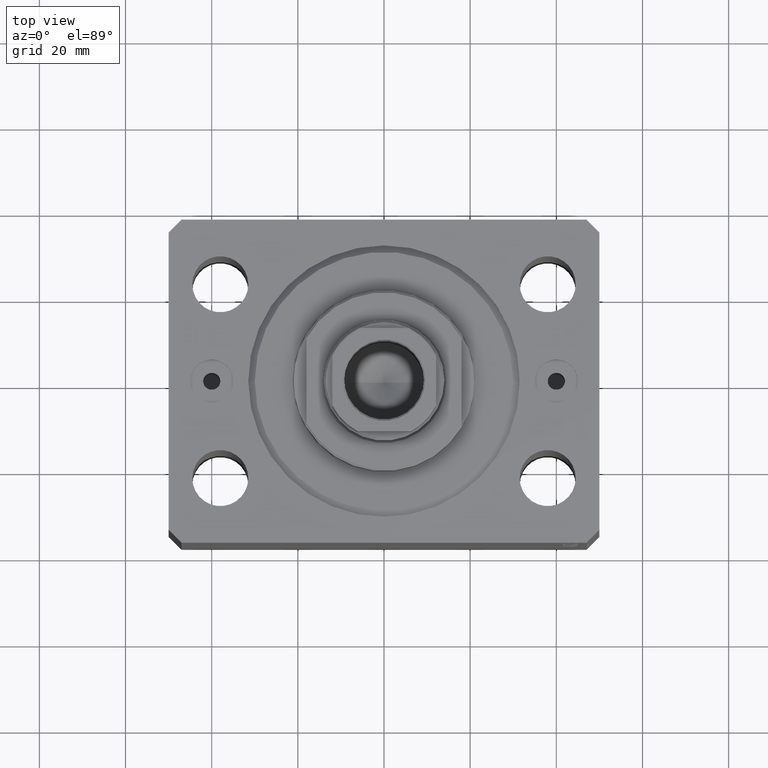
[diagram: clean part render]
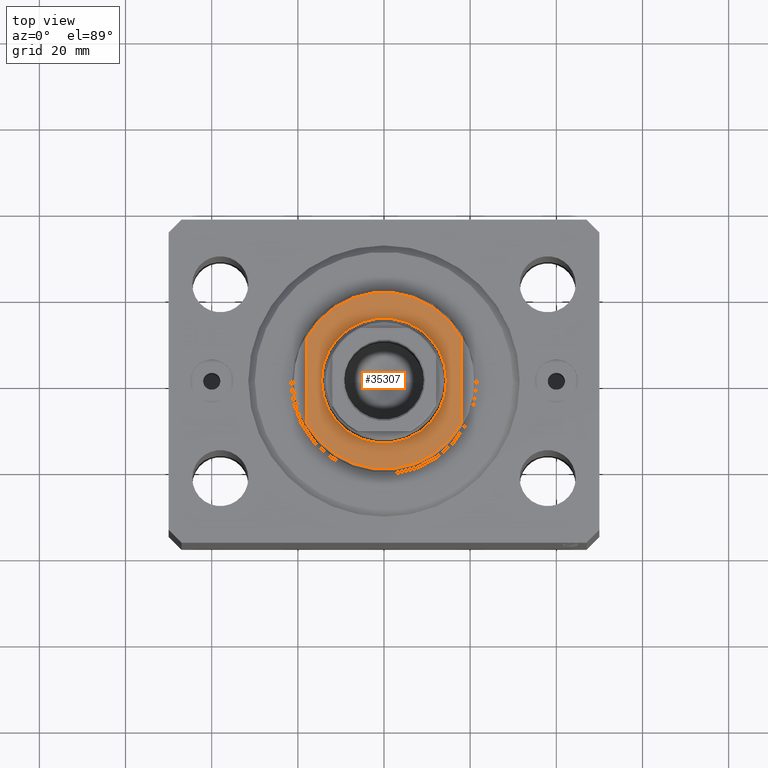
[diagram: same view with one face highlighted and labeled with its STEP entity id]
A machine part, top view. The second image highlights one B-rep face of the part: STEP entity #35307.
In plain terms, the highlighted planar face has unit normal (0, 0, 1).
Its self-contained STEP definition (entity closure, byte-faithful):
#920 = ORIENTED_EDGE ( 'NONE', *, *, #11666, .T. ) ;
#953 = PLANE ( 'NONE',  #25593 ) ;
#1406 = ORIENTED_EDGE ( 'NONE', *, *, #21518, .T. ) ;
#3175 = ORIENTED_EDGE ( 'NONE', *, *, #25645, .F. ) ;
#4287 = DIRECTION ( 'NONE',  ( -0.000000000000000000, -0.000000000000000000, 1.000000000000000000 ) ) ;
#4540 = DIRECTION ( 'NONE',  ( 0.000000000000000000, 0.000000000000000000, -1.000000000000000000 ) ) ;
#4685 = CARTESIAN_POINT ( 'NONE',  ( -14.49999999999998579, 0.000000000000000000, -8.000000000000000000 ) ) ;
#4712 = DIRECTION ( 'NONE',  ( -0.000000000000000000, -0.000000000000000000, 1.000000000000000000 ) ) ;
#6526 = DIRECTION ( 'NONE',  ( 0.000000000000000000, 0.000000000000000000, -1.000000000000000000 ) ) ;
#6528 = ORIENTED_EDGE ( 'NONE', *, *, #9271, .T. ) ;
#6677 = CARTESIAN_POINT ( 'NONE',  ( 0.000000000000000000, 0.000000000000000000, -8.000000000000000000 ) ) ;
#7232 = VECTOR ( 'NONE', #36169, 1000.000000000000000 ) ;
#9271 = EDGE_CURVE ( 'NONE', #16949, #33197, #36375, .T. ) ;
#10547 = AXIS2_PLACEMENT_3D ( 'NONE', #33731, #6526, #13045 ) ;
#11440 = AXIS2_PLACEMENT_3D ( 'NONE', #31941, #4287, #21158 ) ;
#11666 = EDGE_CURVE ( 'NONE', #38835, #16885, #30711, .T. ) ;
#13017 = LINE ( 'NONE', #36628, #7232 ) ;
#13045 = DIRECTION ( 'NONE',  ( -1.000000000000000000, 0.000000000000000000, 0.000000000000000000 ) ) ;
#13627 = VECTOR ( 'NONE', #41358, 1000.000000000000000 ) ;
#13984 = EDGE_LOOP ( 'NONE', ( #6528, #24529, #23374, #3175 ) ) ;
#16362 = AXIS2_PLACEMENT_3D ( 'NONE', #19091, #4712, #18645 ) ;
#16885 = VERTEX_POINT ( 'NONE', #37860 ) ;
#16949 = VERTEX_POINT ( 'NONE', #28178 ) ;
#17591 = CARTESIAN_POINT ( 'NONE',  ( 0.000000000000000000, 0.000000000000000000, -8.000000000000000000 ) ) ;
#17626 = CARTESIAN_POINT ( 'NONE',  ( 18.00000000000000000, 9.810708435174301911, -8.000000000000000000 ) ) ;
#17798 = EDGE_LOOP ( 'NONE', ( #920, #1406 ) ) ;
#17949 = CARTESIAN_POINT ( 'NONE',  ( -18.00000000000000000, -9.810708435174301911, -8.000000000000000000 ) ) ;
#18645 = DIRECTION ( 'NONE',  ( -1.000000000000000000, 0.000000000000000000, 0.000000000000000000 ) ) ;
#18899 = EDGE_CURVE ( 'NONE', #33197, #32664, #23614, .T. ) ;
#19091 = CARTESIAN_POINT ( 'NONE',  ( 0.000000000000000000, 0.000000000000000000, -8.000000000000000000 ) ) ;
#20690 = CARTESIAN_POINT ( 'NONE',  ( 18.00000000000000000, -41.24318125460256113, -8.000000000000000000 ) ) ;
#21158 = DIRECTION ( 'NONE',  ( -1.000000000000000000, 0.000000000000000000, 0.000000000000000000 ) ) ;
#21518 = EDGE_CURVE ( 'NONE', #16885, #38835, #44482, .T. ) ;
#22726 = EDGE_CURVE ( 'NONE', #32664, #42922, #26565, .T. ) ;
#23374 = ORIENTED_EDGE ( 'NONE', *, *, #22726, .T. ) ;
#23614 = LINE ( 'NONE', #20690, #13627 ) ;
#24529 = ORIENTED_EDGE ( 'NONE', *, *, #18899, .T. ) ;
#25235 = FACE_BOUND ( 'NONE', #17798, .T. ) ;
#25593 = AXIS2_PLACEMENT_3D ( 'NONE', #17591, #4540, #27944 ) ;
#25645 = EDGE_CURVE ( 'NONE', #16949, #42922, #13017, .T. ) ;
#25814 = AXIS2_PLACEMENT_3D ( 'NONE', #6677, #41289, #33449 ) ;
#26565 = CIRCLE ( 'NONE', #25814, 20.50000000000000355 ) ;
#27699 = CARTESIAN_POINT ( 'NONE',  ( 18.00000000000000000, -9.810708435174301911, -8.000000000000000000 ) ) ;
#27944 = DIRECTION ( 'NONE',  ( -1.000000000000000000, 0.000000000000000000, -0.000000000000000000 ) ) ;
#28178 = CARTESIAN_POINT ( 'NONE',  ( -18.00000000000000000, 9.810708435174301911, -8.000000000000000000 ) ) ;
#30711 = CIRCLE ( 'NONE', #16362, 14.49999999999998579 ) ;
#31941 = CARTESIAN_POINT ( 'NONE',  ( 0.000000000000000000, 0.000000000000000000, -8.000000000000000000 ) ) ;
#32664 = VERTEX_POINT ( 'NONE', #27699 ) ;
#33197 = VERTEX_POINT ( 'NONE', #17626 ) ;
#33449 = DIRECTION ( 'NONE',  ( -1.000000000000000000, 0.000000000000000000, 0.000000000000000000 ) ) ;
#33731 = CARTESIAN_POINT ( 'NONE',  ( 0.000000000000000000, 0.000000000000000000, -8.000000000000000000 ) ) ;
#35307 = ADVANCED_FACE ( 'NONE', ( #25235, #38276 ), #953, .T. ) ;
#36169 = DIRECTION ( 'NONE',  ( -0.000000000000000000, -1.000000000000000000, -0.000000000000000000 ) ) ;
#36375 = CIRCLE ( 'NONE', #10547, 20.50000000000000355 ) ;
#36628 = CARTESIAN_POINT ( 'NONE',  ( -18.00000000000000000, -41.24318125460256113, -8.000000000000000000 ) ) ;
#37860 = CARTESIAN_POINT ( 'NONE',  ( 14.49999999999998579, 1.775737858763660437E-15, -8.000000000000000000 ) ) ;
#38276 = FACE_OUTER_BOUND ( 'NONE', #13984, .T. ) ;
#38835 = VERTEX_POINT ( 'NONE', #4685 ) ;
#41289 = DIRECTION ( 'NONE',  ( 0.000000000000000000, 0.000000000000000000, -1.000000000000000000 ) ) ;
#41358 = DIRECTION ( 'NONE',  ( 0.000000000000000000, -1.000000000000000000, -0.000000000000000000 ) ) ;
#42922 = VERTEX_POINT ( 'NONE', #17949 ) ;
#44482 = CIRCLE ( 'NONE', #11440, 14.49999999999998579 ) ;